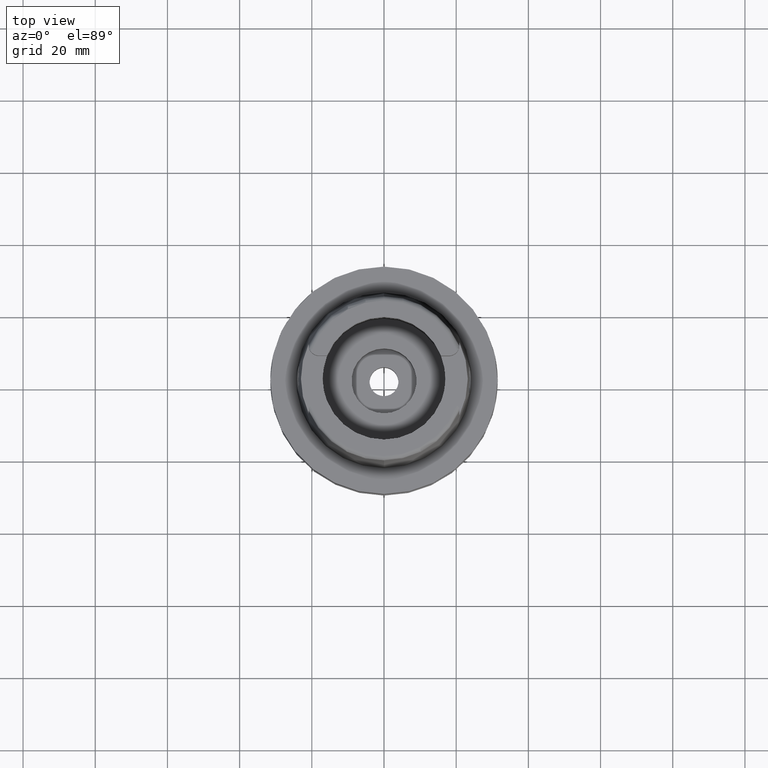
[diagram: clean part render]
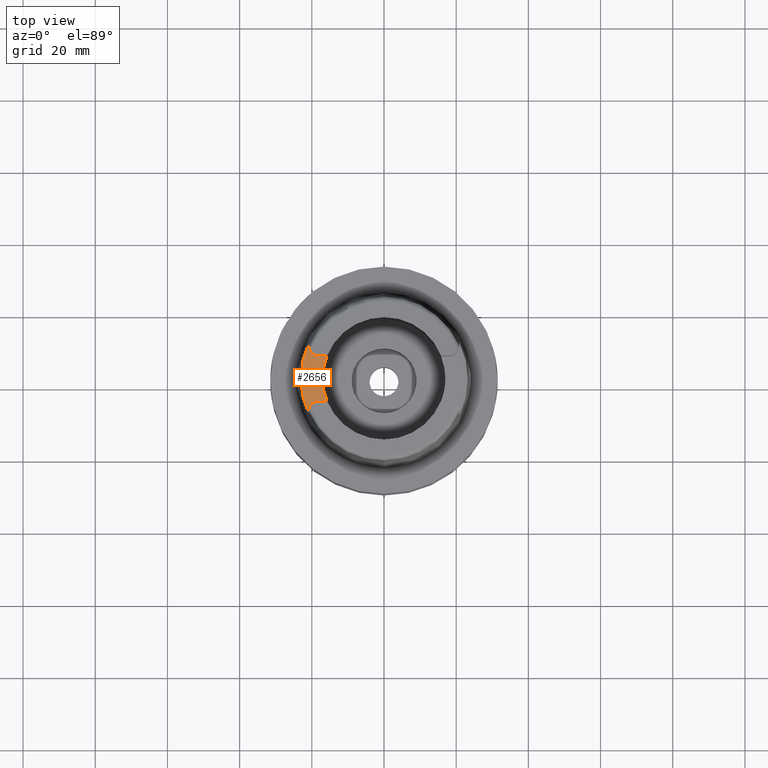
[diagram: same view with one face highlighted and labeled with its STEP entity id]
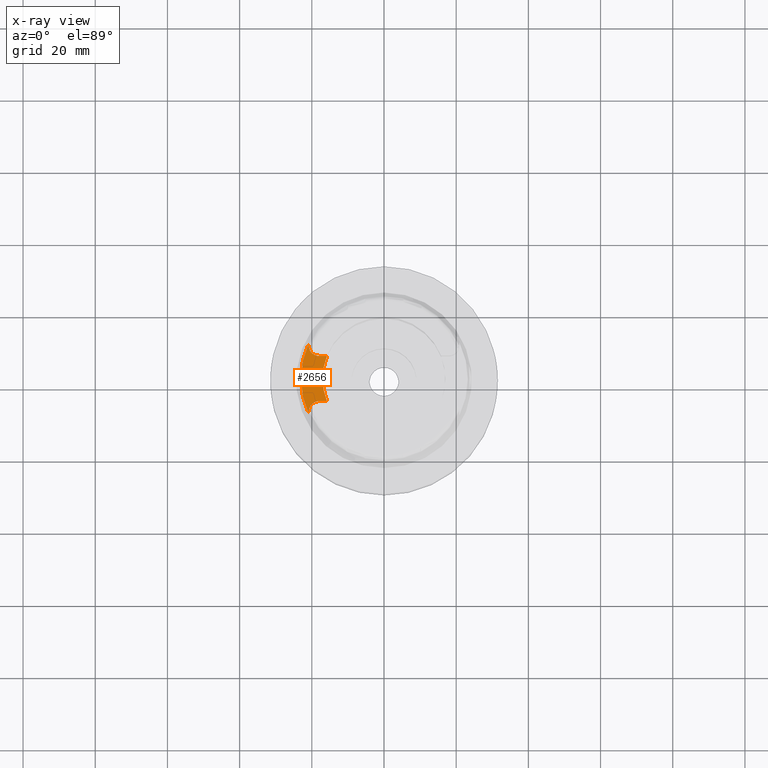
[diagram: x-ray of the same camera — body ghosted, the highlighted face saturated]
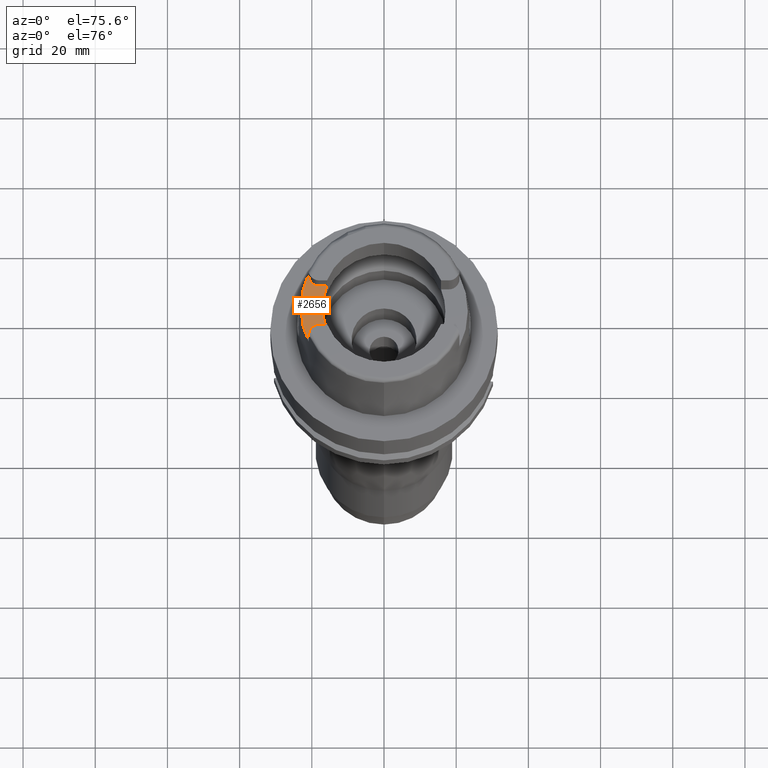
[diagram: same view with one face highlighted and labeled with its STEP entity id]
A machine part, top view. The second image highlights one B-rep face of the part: STEP entity #2656.
The next image is the same camera in x-ray: the body ghosted, the highlighted face saturated — about 0% of this face is hidden behind the body in this view.
A second angle (auxiliary view) of the same face is appended — the face is thin or edge-on in the first view.
In plain terms, the highlighted planar face has unit normal (0, 0, 1).
Its self-contained STEP definition (entity closure, byte-faithful):
#39=CARTESIAN_POINT('',(0.E0,0.E0,2.6E1));
#40=DIRECTION('',(0.E0,0.E0,1.E0));
#41=DIRECTION('',(-9.294994374136E-1,3.688235294118E-1,0.E0));
#42=AXIS2_PLACEMENT_3D('',#39,#40,#41);
#47=DIRECTION('',(-1.E0,8.644330667353E-14,0.E0));
#48=VECTOR('',#47,2.188509563969E0);
#49=CARTESIAN_POINT('',(-1.580149043603E1,-6.27E0,2.6E1));
#50=LINE('',#49,#48);
#54=CARTESIAN_POINT('',(-1.799E1,-9.15E0,2.6E1));
#55=DIRECTION('',(0.E0,0.E0,1.E0));
#56=DIRECTION('',(0.E0,1.E0,0.E0));
#57=AXIS2_PLACEMENT_3D('',#54,#55,#56);
#62=DIRECTION('',(1.239819362355E-6,-9.999999999992E-1,-7.076906260107E-14));
#63=VECTOR('',#62,5.522165905616E-1);
#64=CARTESIAN_POINT('',(-2.087E1,-9.15E0,2.6E1));
#65=LINE('',#64,#63);
#69=CARTESIAN_POINT('',(0.E0,0.E0,2.6E1));
#70=DIRECTION('',(0.E0,0.E0,-1.E0));
#71=DIRECTION('',(-9.068002397791E-1,-4.215605829967E-1,0.E0));
#72=AXIS2_PLACEMENT_3D('',#69,#70,#71);
#77=DIRECTION('',(5.336846542901E-6,-9.999999999858E-1,7.077128431347E-14));
#78=VECTOR('',#77,5.521992549083E-1);
#79=CARTESIAN_POINT('',(-2.087000294700E1,9.702199254900E0,2.6E1));
#80=LINE('',#79,#78);
#84=CARTESIAN_POINT('',(-1.799E1,9.15E0,2.6E1));
#85=DIRECTION('',(0.E0,0.E0,1.E0));
#86=DIRECTION('',(-1.E0,0.E0,0.E0));
#87=AXIS2_PLACEMENT_3D('',#84,#85,#86);
#92=DIRECTION('',(1.E0,8.644330667353E-14,0.E0));
#93=VECTOR('',#92,2.188509563969E0);
#94=CARTESIAN_POINT('',(-1.799E1,6.27E0,2.6E1));
#95=LINE('',#94,#93);
#2275=CARTESIAN_POINT('',(-1.580149043603E1,6.27E0,2.6E1));
#2276=CARTESIAN_POINT('',(-1.580149043603E1,-6.27E0,2.6E1));
#2277=VERTEX_POINT('',#2275);
#2278=VERTEX_POINT('',#2276);
#2291=CARTESIAN_POINT('',(-1.799E1,-6.27E0,2.6E1));
#2292=VERTEX_POINT('',#2291);
#2293=CARTESIAN_POINT('',(-2.087E1,-9.15E0,2.6E1));
#2294=VERTEX_POINT('',#2293);
#2295=CARTESIAN_POINT('',(-2.086999931535E1,-9.702216590561E0,2.6E1));
#2296=VERTEX_POINT('',#2295);
#2297=CARTESIAN_POINT('',(-2.087E1,9.702213322399E0,2.6E1));
#2298=VERTEX_POINT('',#2297);
#2299=CARTESIAN_POINT('',(-2.087E1,9.15E0,2.6E1));
#2300=VERTEX_POINT('',#2299);
#2301=CARTESIAN_POINT('',(-1.799E1,6.27E0,2.6E1));
#2302=VERTEX_POINT('',#2301);
#2634=CARTESIAN_POINT('',(0.E0,0.E0,2.6E1));
#2635=DIRECTION('',(0.E0,0.E0,1.E0));
#2636=DIRECTION('',(0.E0,1.E0,0.E0));
#2637=AXIS2_PLACEMENT_3D('',#2634,#2635,#2636);
#2638=PLANE('',#2637);
#2639=ORIENTED_EDGE('',*,*,#2615,.T.);
#2641=ORIENTED_EDGE('',*,*,#2640,.T.);
#2643=ORIENTED_EDGE('',*,*,#2642,.T.);
#2645=ORIENTED_EDGE('',*,*,#2644,.T.);
#2647=ORIENTED_EDGE('',*,*,#2646,.T.);
#2649=ORIENTED_EDGE('',*,*,#2648,.T.);
#2651=ORIENTED_EDGE('',*,*,#2650,.T.);
#2653=ORIENTED_EDGE('',*,*,#2652,.T.);
#2654=EDGE_LOOP('',(#2639,#2641,#2643,#2645,#2647,#2649,#2651,#2653));
#2655=FACE_OUTER_BOUND('',#2654,.F.);
#43=CIRCLE('',#42,1.7E1);
#58=CIRCLE('',#57,2.88E0);
#73=CIRCLE('',#72,2.301499170874E1);
#88=CIRCLE('',#87,2.88E0);
#2615=EDGE_CURVE('',#2277,#2278,#43,.T.);
#2640=EDGE_CURVE('',#2278,#2292,#50,.T.);
#2642=EDGE_CURVE('',#2292,#2294,#58,.T.);
#2644=EDGE_CURVE('',#2294,#2296,#65,.T.);
#2646=EDGE_CURVE('',#2296,#2298,#73,.T.);
#2648=EDGE_CURVE('',#2298,#2300,#80,.T.);
#2650=EDGE_CURVE('',#2300,#2302,#88,.T.);
#2652=EDGE_CURVE('',#2302,#2277,#95,.T.);
#2656=ADVANCED_FACE('',(#2655),#2638,.T.);